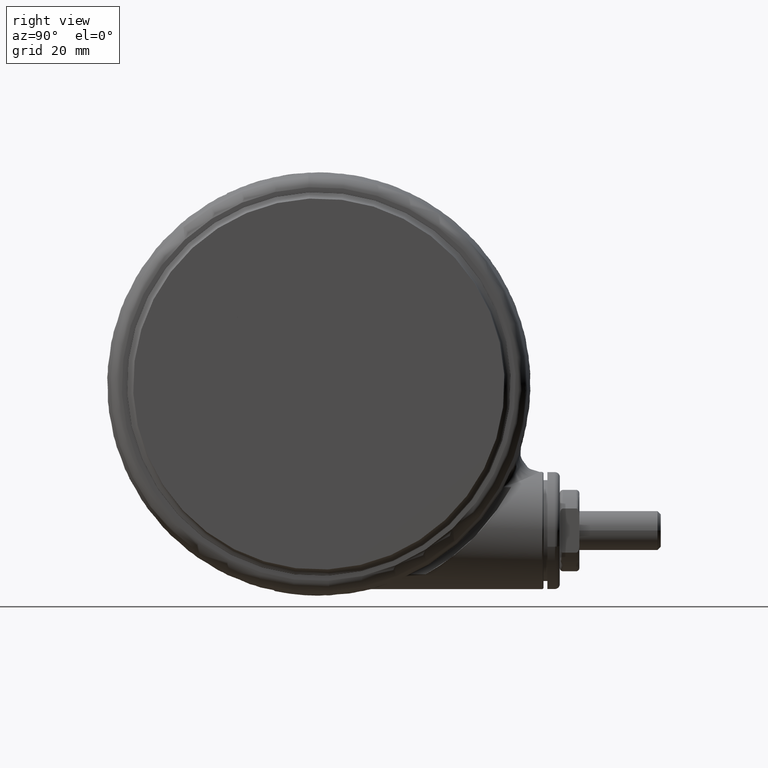
[diagram: clean part render]
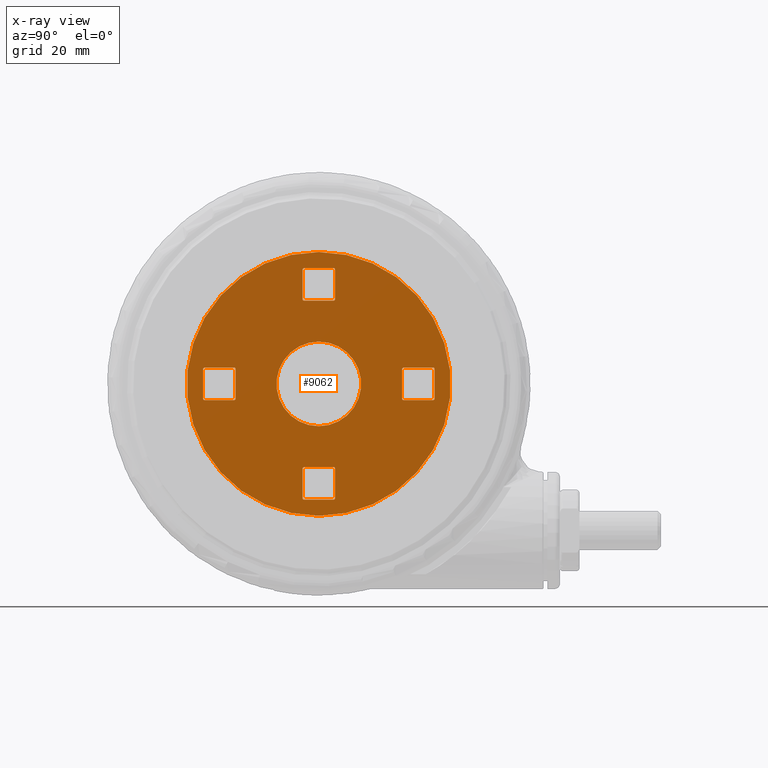
[diagram: x-ray — body ghosted, one internal face saturated and labeled with its STEP entity id]
A machine part, right view, then the same camera in x-ray: the body is ghosted and one INTERNAL B-rep face — a face not visible from any outside direction — is saturated and labeled: STEP entity #9062.
In plain terms, the highlighted planar face has unit normal (1, 0, 0).
Its self-contained STEP definition (entity closure, byte-faithful):
#20 = LINE ( 'NONE', #42425, #26552 ) ;
#415 = CARTESIAN_POINT ( 'NONE',  ( -5.551115123125782700E-014, -2.602085213965210600E-014, -64.40000000000011900 ) ) ;
#1004 = CIRCLE ( 'NONE', #11982, 0.4999999999999987200 ) ;
#1890 = VERTEX_POINT ( 'NONE', #55828 ) ;
#2413 = ORIENTED_EDGE ( 'NONE', *, *, #71773, .T. ) ;
#2543 = VECTOR ( 'NONE', #10982, 1000.000000000000000 ) ;
#2564 = CIRCLE ( 'NONE', #54447, 0.4999999999999998900 ) ;
#2573 = ORIENTED_EDGE ( 'NONE', *, *, #56860, .F. ) ;
#2575 = EDGE_CURVE ( 'NONE', #64687, #58416, #38888, .T. ) ;
#2703 = CARTESIAN_POINT ( 'NONE',  ( 40.44820674871324000, -2.047576815004776000, -64.40000000000011900 ) ) ;
#2720 = LINE ( 'NONE', #41997, #19505 ) ;
#2768 = AXIS2_PLACEMENT_3D ( 'NONE', #28159, #67853, #33880 ) ;
#3201 = VERTEX_POINT ( 'NONE', #71623 ) ;
#3313 = VERTEX_POINT ( 'NONE', #67631 ) ;
#3348 = EDGE_LOOP ( 'NONE', ( #55015, #4553, #20668, #70563, #17389, #19298, #4293, #20893 ) ) ;
#3676 = CIRCLE ( 'NONE', #68784, 0.5000000000000003300 ) ;
#4071 = CARTESIAN_POINT ( 'NONE',  ( 34.77766792283646400, -6.266283894694631800, -64.40000000000011900 ) ) ;
#4293 = ORIENTED_EDGE ( 'NONE', *, *, #58363, .F. ) ;
#4553 = ORIENTED_EDGE ( 'NONE', *, *, #71231, .T. ) ;
#4903 = DIRECTION ( 'NONE',  ( 0.9987211542892171500, -0.05055745222233561800, 0.0000000000000000000 ) ) ;
#5024 = EDGE_CURVE ( 'NONE', #54500, #21775, #57553, .T. ) ;
#5095 = DIRECTION ( 'NONE',  ( 0.9987211542892171500, -0.05055745222233566600, 0.0000000000000000000 ) ) ;
#5185 = VECTOR ( 'NONE', #21989, 1000.000000000000000 ) ;
#5223 = LINE ( 'NONE', #14843, #48694 ) ;
#5289 = CARTESIAN_POINT ( 'NONE',  ( -35.75732429609340100, -3.196288344941572200, -64.40000000000011900 ) ) ;
#5466 = EDGE_CURVE ( 'NONE', #56784, #3313, #45941, .T. ) ;
#5491 = AXIS2_PLACEMENT_3D ( 'NONE', #27932, #67625, #33631 ) ;
#5993 = CARTESIAN_POINT ( 'NONE',  ( 35.75732429609330200, 3.196288344941770700, -64.40000000000011900 ) ) ;
#6084 = DIRECTION ( 'NONE',  ( 0.9987211542892170400, -0.05055745222233949000, 0.0000000000000000000 ) ) ;
#7089 = VECTOR ( 'NONE', #40546, 1000.000000000000000 ) ;
#7240 = VERTEX_POINT ( 'NONE', #44119 ) ;
#7405 = VERTEX_POINT ( 'NONE', #57242 ) ;
#7805 = DIRECTION ( 'NONE',  ( -0.05055745222233957300, -0.9987211542892169300, 0.0000000000000000000 ) ) ;
#7921 = CARTESIAN_POINT ( 'NONE',  ( -6.790923197950309700, -35.25174977386999600, -64.40000000000011900 ) ) ;
#8108 = CARTESIAN_POINT ( 'NONE',  ( 5.785988098582195400, 25.28981695708894200, -64.40000000000011900 ) ) ;
#8542 = DIRECTION ( 'NONE',  ( 0.0000000000000000000, 0.0000000000000000000, 1.000000000000000000 ) ) ;
#8659 = VERTEX_POINT ( 'NONE', #31239 ) ;
#8812 = CIRCLE ( 'NONE', #5491, 0.5000000000000000000 ) ;
#9062 = ADVANCED_FACE ( 'NONE', ( #27801, #26011, #73030, #10984, #69507, #54439 ), #34932, .F. ) ;
#9563 = EDGE_CURVE ( 'NONE', #68791, #39032, #27728, .T. ) ;
#9619 = VERTEX_POINT ( 'NONE', #36079 ) ;
#9721 = EDGE_CURVE ( 'NONE', #1890, #19547, #43698, .T. ) ;
#9751 = DIRECTION ( 'NONE',  ( 0.9987211542892169300, -0.05055745222233925400, 0.0000000000000000000 ) ) ;
#9933 = EDGE_CURVE ( 'NONE', #64687, #19547, #17939, .T. ) ;
#10399 = ORIENTED_EDGE ( 'NONE', *, *, #56104, .T. ) ;
#10982 = DIRECTION ( 'NONE',  ( 0.05055745222234996100, 0.9987211542892164800, 0.0000000000000000000 ) ) ;
#10984 = FACE_BOUND ( 'NONE', #3348, .T. ) ;
#11152 = ORIENTED_EDGE ( 'NONE', *, *, #30944, .T. ) ;
#11781 = VERTEX_POINT ( 'NONE', #28456 ) ;
#11982 = AXIS2_PLACEMENT_3D ( 'NONE', #56159, #22159, #61805 ) ;
#12046 = CARTESIAN_POINT ( 'NONE',  ( 35.25174977386990300, -6.790923197950410100, -64.40000000000011900 ) ) ;
#12391 = DIRECTION ( 'NONE',  ( 0.0000000000000000000, 0.0000000000000000000, 1.000000000000000000 ) ) ;
#13003 = CARTESIAN_POINT ( 'NONE',  ( -6.765644471839140200, -34.75238919672538200, -64.40000000000011900 ) ) ;
#13272 = LINE ( 'NONE', #5993, #56742 ) ;
#13428 = EDGE_CURVE ( 'NONE', #71104, #8659, #69566, .T. ) ;
#13531 = AXIS2_PLACEMENT_3D ( 'NONE', #4071, #43700, #9751 ) ;
#13544 = EDGE_CURVE ( 'NONE', #3201, #7405, #60649, .T. ) ;
#13563 = DIRECTION ( 'NONE',  ( 0.0000000000000000000, 0.0000000000000000000, 1.000000000000000000 ) ) ;
#13578 = CARTESIAN_POINT ( 'NONE',  ( -3.221567071053141000, 35.25796371894872300, -64.40000000000011900 ) ) ;
#14416 = DIRECTION ( 'NONE',  ( 0.9987211542892164800, -0.05055745222235004400, -0.0000000000000000000 ) ) ;
#14843 = CARTESIAN_POINT ( 'NONE',  ( 3.701862867165255400, -25.77011275320122200, -64.40000000000011900 ) ) ;
#15205 = AXIS2_PLACEMENT_3D ( 'NONE', #50977, #16980, #56657 ) ;
#15532 = DIRECTION ( 'NONE',  ( 0.0000000000000000000, 0.0000000000000000000, 1.000000000000000000 ) ) ;
#15548 = VERTEX_POINT ( 'NONE', #13003 ) ;
#15994 = DIRECTION ( 'NONE',  ( 0.9987211542892169300, -0.05055745222233949700, 0.0000000000000000000 ) ) ;
#16060 = VERTEX_POINT ( 'NONE', #69422 ) ;
#16295 = CARTESIAN_POINT ( 'NONE',  ( 25.26453823097773800, -6.285348675726975600, -64.40000000000011900 ) ) ;
#16537 = CARTESIAN_POINT ( 'NONE',  ( 25.74483402708996500, 3.202502290020582200, -64.40000000000011900 ) ) ;
#16635 = EDGE_CURVE ( 'NONE', #45008, #3313, #1004, .T. ) ;
#16980 = DIRECTION ( 'NONE',  ( 0.0000000000000000000, 0.0000000000000000000, 1.000000000000000000 ) ) ;
#17355 = EDGE_CURVE ( 'NONE', #23512, #59276, #65572, .T. ) ;
#17389 = ORIENTED_EDGE ( 'NONE', *, *, #9933, .F. ) ;
#17494 = ORIENTED_EDGE ( 'NONE', *, *, #24032, .F. ) ;
#17615 = DIRECTION ( 'NONE',  ( -0.05055745222234298700, -0.9987211542892168200, 0.0000000000000000000 ) ) ;
#17629 = CARTESIAN_POINT ( 'NONE',  ( 26.26947333034574300, 3.676584141054025400, -64.40000000000011900 ) ) ;
#17939 = LINE ( 'NONE', #58553, #21495 ) ;
#18078 = EDGE_CURVE ( 'NONE', #72860, #59803, #34380, .T. ) ;
#18113 = EDGE_LOOP ( 'NONE', ( #17494, #19625, #30073, #43566, #48088, #21523, #42250, #54831 ) ) ;
#18843 = ORIENTED_EDGE ( 'NONE', *, *, #49581, .T. ) ;
#18884 = DIRECTION ( 'NONE',  ( 0.9987211542892168200, -0.05055745222234298700, -0.0000000000000000000 ) ) ;
#18910 = CARTESIAN_POINT ( 'NONE',  ( 35.27702849998107800, -6.291562620805801300, -64.40000000000011900 ) ) ;
#19288 = DIRECTION ( 'NONE',  ( 0.0000000000000000000, 0.0000000000000000000, 1.000000000000000000 ) ) ;
#19298 = ORIENTED_EDGE ( 'NONE', *, *, #2575, .T. ) ;
#19410 = CARTESIAN_POINT ( 'NONE',  ( 2.696927767797251200, -35.73204556998221900, -64.40000000000011900 ) ) ;
#19505 = VECTOR ( 'NONE', #36294, 1000.000000000000100 ) ;
#19547 = VERTEX_POINT ( 'NONE', #59055 ) ;
#19625 = ORIENTED_EDGE ( 'NONE', *, *, #16635, .T. ) ;
#19679 = CIRCLE ( 'NONE', #38663, 0.5000000000000004400 ) ;
#20452 = CARTESIAN_POINT ( 'NONE',  ( 5.811266824693365000, 25.78917753423354900, -64.40000000000011900 ) ) ;
#20668 = ORIENTED_EDGE ( 'NONE', *, *, #71434, .F. ) ;
#20893 = ORIENTED_EDGE ( 'NONE', *, *, #31914, .T. ) ;
#21260 = ORIENTED_EDGE ( 'NONE', *, *, #65279, .T. ) ;
#21495 = VECTOR ( 'NONE', #18884, 1000.000000000000000 ) ;
#21523 = ORIENTED_EDGE ( 'NONE', *, *, #43412, .T. ) ;
#21702 = CARTESIAN_POINT ( 'NONE',  ( -35.25796371894878700, -3.221567071052742200, -64.40000000000011900 ) ) ;
#21775 = VERTEX_POINT ( 'NONE', #46039 ) ;
#21989 = DIRECTION ( 'NONE',  ( 0.05055745222234298700, 0.9987211542892168200, 0.0000000000000000000 ) ) ;
#22159 = DIRECTION ( 'NONE',  ( 0.0000000000000000000, 0.0000000000000000000, 1.000000000000000000 ) ) ;
#23079 = CARTESIAN_POINT ( 'NONE',  ( -26.24419460423467500, -3.177223563909283800, -64.40000000000011900 ) ) ;
#23512 = VERTEX_POINT ( 'NONE', #2703 ) ;
#23527 = CARTESIAN_POINT ( 'NONE',  ( 2.730102420006277300, 53.93094233161769300, -64.40000000000011900 ) ) ;
#23784 = CARTESIAN_POINT ( 'NONE',  ( -35.73204556998223300, -2.696927767796959000, -64.40000000000011900 ) ) ;
#23789 = LINE ( 'NONE', #16295, #5185 ) ;
#23841 = EDGE_CURVE ( 'NONE', #15548, #16060, #55919, .T. ) ;
#23935 = LINE ( 'NONE', #34832, #7089 ) ;
#24032 = EDGE_CURVE ( 'NONE', #45008, #8659, #20, .T. ) ;
#24184 = CARTESIAN_POINT ( 'NONE',  ( -5.551115123125782700E-014, -2.602085213965210600E-014, -64.40000000000011900 ) ) ;
#24284 = DIRECTION ( 'NONE',  ( 0.9987211542892169300, -0.05055745222233949700, 0.0000000000000000000 ) ) ;
#25865 = CARTESIAN_POINT ( 'NONE',  ( -35.23268499283761900, -2.722206493908133000, -64.40000000000011900 ) ) ;
#25996 = AXIS2_PLACEMENT_3D ( 'NONE', #49521, #15532, #55201 ) ;
#26011 = FACE_BOUND ( 'NONE', #18113, .T. ) ;
#26140 = DIRECTION ( 'NONE',  ( 0.9987211542892169300, -0.05055745222234255000, 0.0000000000000000000 ) ) ;
#26472 = CARTESIAN_POINT ( 'NONE',  ( -5.551115123125782700E-014, -2.602085213965210600E-014, -64.40000000000011900 ) ) ;
#26543 = EDGE_CURVE ( 'NONE', #7240, #44173, #19679, .T. ) ;
#26552 = VECTOR ( 'NONE', #14416, 1000.000000000000000 ) ;
#26585 = CARTESIAN_POINT ( 'NONE',  ( -2.696927767797362200, 35.73204556998216200, -64.40000000000011900 ) ) ;
#26948 = DIRECTION ( 'NONE',  ( 0.0000000000000000000, 0.0000000000000000000, 1.000000000000000000 ) ) ;
#27246 = EDGE_CURVE ( 'NONE', #56058, #30849, #35561, .T. ) ;
#27407 = CARTESIAN_POINT ( 'NONE',  ( -12.98337500575987500, 0.6572468788903889100, -64.40000000000011900 ) ) ;
#27445 = CIRCLE ( 'NONE', #13531, 0.4999999999999987200 ) ;
#27637 = CARTESIAN_POINT ( 'NONE',  ( 6.285348675726804200, 25.26453823097776700, -64.40000000000011900 ) ) ;
#27728 = CIRCLE ( 'NONE', #63753, 13.00000000000000200 ) ;
#27801 = FACE_OUTER_BOUND ( 'NONE', #69627, .T. ) ;
#27825 = ORIENTED_EDGE ( 'NONE', *, *, #40684, .T. ) ;
#27932 = CARTESIAN_POINT ( 'NONE',  ( 3.177223563909476100, -26.24419460423466100, -64.40000000000011900 ) ) ;
#28076 = CARTESIAN_POINT ( 'NONE',  ( 34.75238919672528900, -6.765644471839240600, -64.40000000000011900 ) ) ;
#28159 = CARTESIAN_POINT ( 'NONE',  ( -3.177223563909587200, 26.24419460423460400, -64.40000000000011900 ) ) ;
#28456 = CARTESIAN_POINT ( 'NONE',  ( 3.221567071053030000, -35.25796371894878000, -64.40000000000011900 ) ) ;
#28755 = DIRECTION ( 'NONE',  ( 0.9987211542892169300, -0.05055745222233925400, 0.0000000000000000000 ) ) ;
#28869 = DIRECTION ( 'NONE',  ( 0.0000000000000000000, 0.0000000000000000000, 1.000000000000000000 ) ) ;
#29854 = DIRECTION ( 'NONE',  ( 0.9987211542892169300, -0.05055745222233949000, 0.0000000000000000000 ) ) ;
#29954 = CARTESIAN_POINT ( 'NONE',  ( -6.285348675726915200, -25.26453823097782300, -64.40000000000011900 ) ) ;
#30032 = AXIS2_PLACEMENT_3D ( 'NONE', #23079, #62727, #28755 ) ;
#30073 = ORIENTED_EDGE ( 'NONE', *, *, #5466, .F. ) ;
#30849 = VERTEX_POINT ( 'NONE', #21702 ) ;
#30882 = VECTOR ( 'NONE', #33335, 1000.000000000000100 ) ;
#30944 = EDGE_CURVE ( 'NONE', #59276, #23512, #64439, .T. ) ;
#31239 = CARTESIAN_POINT ( 'NONE',  ( -25.76389880812244800, 6.310627401838282900, -64.40000000000011900 ) ) ;
#31570 = DIRECTION ( 'NONE',  ( 0.9987211542892169300, -0.05055745222233925400, 0.0000000000000000000 ) ) ;
#31699 = AXIS2_PLACEMENT_3D ( 'NONE', #42486, #8542, #48217 ) ;
#31914 = EDGE_CURVE ( 'NONE', #57528, #21775, #35937, .T. ) ;
#32162 = EDGE_CURVE ( 'NONE', #71104, #9619, #23935, .T. ) ;
#32174 = DIRECTION ( 'NONE',  ( 0.9987211542892170400, -0.05055745222233949000, 0.0000000000000000000 ) ) ;
#32702 = VECTOR ( 'NONE', #47602, 1000.000000000000100 ) ;
#33335 = DIRECTION ( 'NONE',  ( -0.9987211542892169300, 0.05055745222233949700, 0.0000000000000000000 ) ) ;
#33631 = DIRECTION ( 'NONE',  ( 0.9987211542892169300, -0.05055745222234259200, 0.0000000000000000000 ) ) ;
#33745 = VECTOR ( 'NONE', #71199, 1000.000000000000000 ) ;
#33764 = CARTESIAN_POINT ( 'NONE',  ( 35.23268499283752000, 2.722206493908331900, -64.40000000000011900 ) ) ;
#33795 = CARTESIAN_POINT ( 'NONE',  ( 3.676584141054085400, -26.26947333034582900, -64.40000000000011900 ) ) ;
#33880 = DIRECTION ( 'NONE',  ( 0.9987211542892169300, -0.05055745222234259200, 0.0000000000000000000 ) ) ;
#34186 = ORIENTED_EDGE ( 'NONE', *, *, #18078, .F. ) ;
#34315 = AXIS2_PLACEMENT_3D ( 'NONE', #26472, #66142, #32174 ) ;
#34380 = LINE ( 'NONE', #72743, #47727 ) ;
#34510 = AXIS2_PLACEMENT_3D ( 'NONE', #60916, #26948, #66617 ) ;
#34832 = CARTESIAN_POINT ( 'NONE',  ( -25.26453823097784100, 6.285348675727102700, -64.40000000000011900 ) ) ;
#34932 = PLANE ( 'NONE',  #36168 ) ;
#35531 = CIRCLE ( 'NONE', #58132, 0.4999999999999998900 ) ;
#35544 = VERTEX_POINT ( 'NONE', #59352 ) ;
#35561 = LINE ( 'NONE', #65454, #33745 ) ;
#35937 = CIRCLE ( 'NONE', #25996, 0.4999999999999987200 ) ;
#36079 = CARTESIAN_POINT ( 'NONE',  ( -25.74483402709006400, -3.202502290020458700, -64.40000000000011900 ) ) ;
#36129 = EDGE_CURVE ( 'NONE', #3201, #45282, #43025, .T. ) ;
#36168 = AXIS2_PLACEMENT_3D ( 'NONE', #23527, #12391, #52058 ) ;
#36294 = DIRECTION ( 'NONE',  ( -0.9987211542892169300, 0.05055745222233949700, 0.0000000000000000000 ) ) ;
#36791 = ORIENTED_EDGE ( 'NONE', *, *, #9563, .T. ) ;
#37542 = AXIS2_PLACEMENT_3D ( 'NONE', #20452, #60119, #26140 ) ;
#38069 = LINE ( 'NONE', #29954, #51411 ) ;
#38527 = CARTESIAN_POINT ( 'NONE',  ( -26.26947333034584600, -3.676584141053898000, -64.40000000000011900 ) ) ;
#38663 = AXIS2_PLACEMENT_3D ( 'NONE', #62833, #28869, #68557 ) ;
#38827 = DIRECTION ( 'NONE',  ( 0.0000000000000000000, 0.0000000000000000000, 1.000000000000000000 ) ) ;
#38888 = CIRCLE ( 'NONE', #31699, 0.4999999999999987200 ) ;
#39009 = DIRECTION ( 'NONE',  ( 0.0000000000000000000, 0.0000000000000000000, 1.000000000000000000 ) ) ;
#39032 = VERTEX_POINT ( 'NONE', #27407 ) ;
#39474 = DIRECTION ( 'NONE',  ( 0.9987211542892169300, -0.05055745222233925400, 0.0000000000000000000 ) ) ;
#39588 = CARTESIAN_POINT ( 'NONE',  ( 3.202502290020646100, -25.74483402709004700, -64.40000000000011900 ) ) ;
#40028 = DIRECTION ( 'NONE',  ( -0.0000000000000000000, -0.0000000000000000000, -1.000000000000000000 ) ) ;
#40477 = ORIENTED_EDGE ( 'NONE', *, *, #44276, .F. ) ;
#40546 = DIRECTION ( 'NONE',  ( -0.05055745222234996100, -0.9987211542892164800, 0.0000000000000000000 ) ) ;
#40648 = CIRCLE ( 'NONE', #65826, 0.4999999999999987200 ) ;
#40684 = EDGE_CURVE ( 'NONE', #35544, #59803, #3676, .T. ) ;
#41289 = VECTOR ( 'NONE', #7805, 1000.000000000000100 ) ;
#41393 = VERTEX_POINT ( 'NONE', #19410 ) ;
#41707 = EDGE_LOOP ( 'NONE', ( #2573, #51379, #43994, #10399, #54541, #2413, #63009, #47230 ) ) ;
#41776 = CARTESIAN_POINT ( 'NONE',  ( 6.790923197950198700, 35.25174977386993900, -64.40000000000011900 ) ) ;
#41997 = CARTESIAN_POINT ( 'NONE',  ( 3.196288344941860000, -35.75732429609339400, -64.40000000000011900 ) ) ;
#42099 = EDGE_CURVE ( 'NONE', #52586, #11781, #5223, .T. ) ;
#42250 = ORIENTED_EDGE ( 'NONE', *, *, #32162, .F. ) ;
#42425 = CARTESIAN_POINT ( 'NONE',  ( -35.25174977387000300, 6.790923197950608200, -64.40000000000011900 ) ) ;
#42460 = VECTOR ( 'NONE', #68787, 1000.000000000000000 ) ;
#42486 = CARTESIAN_POINT ( 'NONE',  ( 26.24419460423457600, 3.177223563909416600, -64.40000000000011900 ) ) ;
#42545 = EDGE_CURVE ( 'NONE', #39032, #68791, #68992, .T. ) ;
#43002 = CARTESIAN_POINT ( 'NONE',  ( 25.28981695708891000, -5.785988098582366800, -64.40000000000011900 ) ) ;
#43025 = LINE ( 'NONE', #52418, #69625 ) ;
#43339 = AXIS2_PLACEMENT_3D ( 'NONE', #33764, #73436, #39474 ) ;
#43412 = EDGE_CURVE ( 'NONE', #56058, #9619, #62648, .T. ) ;
#43566 = ORIENTED_EDGE ( 'NONE', *, *, #57507, .T. ) ;
#43698 = CIRCLE ( 'NONE', #43339, 0.4999999999999987200 ) ;
#43700 = DIRECTION ( 'NONE',  ( 0.0000000000000000000, 0.0000000000000000000, 1.000000000000000000 ) ) ;
#43994 = ORIENTED_EDGE ( 'NONE', *, *, #71081, .F. ) ;
#44119 = CARTESIAN_POINT ( 'NONE',  ( -5.785988098582306400, -25.28981695708899100, -64.40000000000011900 ) ) ;
#44173 = VERTEX_POINT ( 'NONE', #46483 ) ;
#44276 = EDGE_CURVE ( 'NONE', #35544, #47773, #56368, .T. ) ;
#44832 = CARTESIAN_POINT ( 'NONE',  ( -34.75238919672539600, 6.765644471839428000, -64.40000000000011900 ) ) ;
#45008 = VERTEX_POINT ( 'NONE', #44832 ) ;
#45282 = VERTEX_POINT ( 'NONE', #13578 ) ;
#45941 = LINE ( 'NONE', #5289, #2543 ) ;
#46039 = CARTESIAN_POINT ( 'NONE',  ( 25.76389880812234900, -6.310627401838155000, -64.40000000000011900 ) ) ;
#46483 = CARTESIAN_POINT ( 'NONE',  ( -6.310627401838084800, -25.76389880812243000, -64.40000000000011900 ) ) ;
#47230 = ORIENTED_EDGE ( 'NONE', *, *, #26543, .T. ) ;
#47534 = CARTESIAN_POINT ( 'NONE',  ( -5.551115123125782700E-014, -2.602085213965210600E-014, -64.40000000000011900 ) ) ;
#47602 = DIRECTION ( 'NONE',  ( 0.05055745222233957300, 0.9987211542892169300, 0.0000000000000000000 ) ) ;
#47715 = CARTESIAN_POINT ( 'NONE',  ( -25.28981695708900900, 5.785988098582493900, -64.40000000000011900 ) ) ;
#47727 = VECTOR ( 'NONE', #15994, 1000.000000000000100 ) ;
#47773 = VERTEX_POINT ( 'NONE', #51533 ) ;
#47792 = LINE ( 'NONE', #27637, #30882 ) ;
#48088 = ORIENTED_EDGE ( 'NONE', *, *, #27246, .F. ) ;
#48217 = DIRECTION ( 'NONE',  ( 0.9987211542892169300, -0.05055745222233925400, 0.0000000000000000000 ) ) ;
#48305 = ORIENTED_EDGE ( 'NONE', *, *, #42545, .T. ) ;
#48364 = CARTESIAN_POINT ( 'NONE',  ( 6.291562620805589900, 35.27702849998111400, -64.40000000000011900 ) ) ;
#48486 = AXIS2_PLACEMENT_3D ( 'NONE', #415, #40028, #6084 ) ;
#48694 = VECTOR ( 'NONE', #71373, 1000.000000000000100 ) ;
#49521 = CARTESIAN_POINT ( 'NONE',  ( 25.78917753423352000, -5.811266824693546200, -64.40000000000011900 ) ) ;
#49581 = EDGE_CURVE ( 'NONE', #71996, #47773, #58375, .T. ) ;
#49623 = LINE ( 'NONE', #7921, #32702 ) ;
#49716 = ORIENTED_EDGE ( 'NONE', *, *, #72150, .F. ) ;
#49922 = AXIS2_PLACEMENT_3D ( 'NONE', #47534, #13563, #53212 ) ;
#50977 = CARTESIAN_POINT ( 'NONE',  ( -6.266283894694531400, -34.77766792283655700, -64.40000000000011900 ) ) ;
#51379 = ORIENTED_EDGE ( 'NONE', *, *, #23841, .T. ) ;
#51411 = VECTOR ( 'NONE', #24284, 1000.000000000000100 ) ;
#51533 = CARTESIAN_POINT ( 'NONE',  ( 6.310627401837973800, 25.76389880812238100, -64.40000000000011900 ) ) ;
#52021 = EDGE_LOOP ( 'NONE', ( #36791, #48305 ) ) ;
#52058 = DIRECTION ( 'NONE',  ( 0.9987211542892169300, -0.05055745222233949700, 0.0000000000000000000 ) ) ;
#52418 = CARTESIAN_POINT ( 'NONE',  ( -3.701862867165366400, 25.77011275320116500, -64.40000000000011900 ) ) ;
#52586 = VERTEX_POINT ( 'NONE', #33795 ) ;
#53212 = DIRECTION ( 'NONE',  ( 0.9987211542892169300, -0.05055745222233949000, 0.0000000000000000000 ) ) ;
#53255 = CARTESIAN_POINT ( 'NONE',  ( -2.722206493908532200, 35.23268499283754800, -64.40000000000011900 ) ) ;
#53922 = ORIENTED_EDGE ( 'NONE', *, *, #17355, .T. ) ;
#54439 = FACE_BOUND ( 'NONE', #52021, .T. ) ;
#54447 = AXIS2_PLACEMENT_3D ( 'NONE', #53255, #19288, #58947 ) ;
#54500 = VERTEX_POINT ( 'NONE', #28076 ) ;
#54541 = ORIENTED_EDGE ( 'NONE', *, *, #42099, .F. ) ;
#54598 = CARTESIAN_POINT ( 'NONE',  ( -40.44820674871334600, 2.047576815004728400, -64.40000000000011900 ) ) ;
#54831 = ORIENTED_EDGE ( 'NONE', *, *, #13428, .T. ) ;
#54941 = ORIENTED_EDGE ( 'NONE', *, *, #13544, .T. ) ;
#55015 = ORIENTED_EDGE ( 'NONE', *, *, #5024, .F. ) ;
#55201 = DIRECTION ( 'NONE',  ( 0.9987211542892169300, -0.05055745222233925400, 0.0000000000000000000 ) ) ;
#55828 = CARTESIAN_POINT ( 'NONE',  ( 35.73204556998213400, 2.696927767797156600, -64.40000000000011900 ) ) ;
#55919 = CIRCLE ( 'NONE', #15205, 0.5000000000000003300 ) ;
#56058 = VERTEX_POINT ( 'NONE', #38527 ) ;
#56104 = EDGE_CURVE ( 'NONE', #41393, #11781, #35531, .T. ) ;
#56159 = CARTESIAN_POINT ( 'NONE',  ( -34.77766792283656400, 6.266283894694819200, -64.40000000000011900 ) ) ;
#56332 = VERTEX_POINT ( 'NONE', #18910 ) ;
#56368 = LINE ( 'NONE', #41776, #41289 ) ;
#56657 = DIRECTION ( 'NONE',  ( 0.9987211542892171500, -0.05055745222233561800, 0.0000000000000000000 ) ) ;
#56742 = VECTOR ( 'NONE', #17615, 1000.000000000000000 ) ;
#56784 = VERTEX_POINT ( 'NONE', #23784 ) ;
#56795 = EDGE_CURVE ( 'NONE', #7240, #69231, #38069, .T. ) ;
#56860 = EDGE_CURVE ( 'NONE', #15548, #44173, #49623, .T. ) ;
#57242 = CARTESIAN_POINT ( 'NONE',  ( -3.202502290020757100, 25.74483402708999700, -64.40000000000011900 ) ) ;
#57507 = EDGE_CURVE ( 'NONE', #56784, #30849, #40648, .T. ) ;
#57528 = VERTEX_POINT ( 'NONE', #43002 ) ;
#57553 = LINE ( 'NONE', #12046, #42460 ) ;
#58132 = AXIS2_PLACEMENT_3D ( 'NONE', #72961, #39009, #5095 ) ;
#58363 = EDGE_CURVE ( 'NONE', #57528, #58416, #23789, .T. ) ;
#58375 = CIRCLE ( 'NONE', #37542, 0.5000000000000004400 ) ;
#58416 = VERTEX_POINT ( 'NONE', #16537 ) ;
#58553 = CARTESIAN_POINT ( 'NONE',  ( 25.77011275320113300, 3.701862867165195400, -64.40000000000011900 ) ) ;
#58947 = DIRECTION ( 'NONE',  ( 0.9987211542892171500, -0.05055745222233566600, 0.0000000000000000000 ) ) ;
#59055 = CARTESIAN_POINT ( 'NONE',  ( 35.25796371894868700, 3.221567071052940700, -64.40000000000011900 ) ) ;
#59276 = VERTEX_POINT ( 'NONE', #54598 ) ;
#59352 = CARTESIAN_POINT ( 'NONE',  ( 6.765644471839029200, 34.75238919672532500, -64.40000000000011900 ) ) ;
#59803 = VERTEX_POINT ( 'NONE', #48364 ) ;
#60119 = DIRECTION ( 'NONE',  ( 0.0000000000000000000, 0.0000000000000000000, 1.000000000000000000 ) ) ;
#60649 = CIRCLE ( 'NONE', #2768, 0.5000000000000000000 ) ;
#60916 = CARTESIAN_POINT ( 'NONE',  ( -25.78917753423362000, 5.811266824693674100, -64.40000000000011900 ) ) ;
#61805 = DIRECTION ( 'NONE',  ( 0.9987211542892169300, -0.05055745222233925400, 0.0000000000000000000 ) ) ;
#62178 = ORIENTED_EDGE ( 'NONE', *, *, #36129, .F. ) ;
#62648 = CIRCLE ( 'NONE', #30032, 0.4999999999999987200 ) ;
#62727 = DIRECTION ( 'NONE',  ( 0.0000000000000000000, 0.0000000000000000000, 1.000000000000000000 ) ) ;
#62833 = CARTESIAN_POINT ( 'NONE',  ( -5.811266824693476000, -25.78917753423360500, -64.40000000000011900 ) ) ;
#63009 = ORIENTED_EDGE ( 'NONE', *, *, #56795, .F. ) ;
#63753 = AXIS2_PLACEMENT_3D ( 'NONE', #24184, #63839, #29854 ) ;
#63797 = DIRECTION ( 'NONE',  ( 0.05055745222233949700, 0.9987211542892169300, 0.0000000000000000000 ) ) ;
#63839 = DIRECTION ( 'NONE',  ( 0.0000000000000000000, 0.0000000000000000000, 1.000000000000000000 ) ) ;
#64439 = CIRCLE ( 'NONE', #48486, 40.50000000000000700 ) ;
#64687 = VERTEX_POINT ( 'NONE', #17629 ) ;
#65279 = EDGE_CURVE ( 'NONE', #72860, #45282, #2564, .T. ) ;
#65454 = CARTESIAN_POINT ( 'NONE',  ( -25.77011275320123600, -3.701862867165068000, -64.40000000000011900 ) ) ;
#65529 = DIRECTION ( 'NONE',  ( 0.0000000000000000000, 0.0000000000000000000, 1.000000000000000000 ) ) ;
#65572 = CIRCLE ( 'NONE', #34315, 40.50000000000000700 ) ;
#65826 = AXIS2_PLACEMENT_3D ( 'NONE', #25865, #65529, #31570 ) ;
#66142 = DIRECTION ( 'NONE',  ( -0.0000000000000000000, -0.0000000000000000000, -1.000000000000000000 ) ) ;
#66617 = DIRECTION ( 'NONE',  ( 0.9987211542892169300, -0.05055745222233925400, 0.0000000000000000000 ) ) ;
#67625 = DIRECTION ( 'NONE',  ( 0.0000000000000000000, 0.0000000000000000000, 1.000000000000000000 ) ) ;
#67631 = CARTESIAN_POINT ( 'NONE',  ( -35.27702849998117800, 6.291562620805999400, -64.40000000000011900 ) ) ;
#67853 = DIRECTION ( 'NONE',  ( 0.0000000000000000000, 0.0000000000000000000, 1.000000000000000000 ) ) ;
#68557 = DIRECTION ( 'NONE',  ( 0.9987211542892169300, -0.05055745222234255000, 0.0000000000000000000 ) ) ;
#68784 = AXIS2_PLACEMENT_3D ( 'NONE', #72773, #38827, #4903 ) ;
#68787 = DIRECTION ( 'NONE',  ( -0.9987211542892168200, 0.05055745222234307000, 0.0000000000000000000 ) ) ;
#68791 = VERTEX_POINT ( 'NONE', #69411 ) ;
#68992 = CIRCLE ( 'NONE', #49922, 13.00000000000000200 ) ;
#69231 = VERTEX_POINT ( 'NONE', #39588 ) ;
#69411 = CARTESIAN_POINT ( 'NONE',  ( 12.98337500575976700, -0.6572468788904395300, -64.40000000000011900 ) ) ;
#69422 = CARTESIAN_POINT ( 'NONE',  ( -6.291562620805700900, -35.27702849998117100, -64.40000000000011900 ) ) ;
#69507 = FACE_BOUND ( 'NONE', #69550, .T. ) ;
#69550 = EDGE_LOOP ( 'NONE', ( #40477, #27825, #34186, #21260, #62178, #54941, #49716, #18843 ) ) ;
#69566 = CIRCLE ( 'NONE', #34510, 0.4999999999999987200 ) ;
#69625 = VECTOR ( 'NONE', #63797, 1000.000000000000100 ) ;
#69627 = EDGE_LOOP ( 'NONE', ( #53922, #11152 ) ) ;
#70563 = ORIENTED_EDGE ( 'NONE', *, *, #9721, .T. ) ;
#71081 = EDGE_CURVE ( 'NONE', #41393, #16060, #2720, .T. ) ;
#71104 = VERTEX_POINT ( 'NONE', #47715 ) ;
#71199 = DIRECTION ( 'NONE',  ( -0.9987211542892164800, 0.05055745222234996100, 0.0000000000000000000 ) ) ;
#71231 = EDGE_CURVE ( 'NONE', #54500, #56332, #27445, .T. ) ;
#71373 = DIRECTION ( 'NONE',  ( -0.05055745222233949700, -0.9987211542892169300, 0.0000000000000000000 ) ) ;
#71434 = EDGE_CURVE ( 'NONE', #1890, #56332, #13272, .T. ) ;
#71623 = CARTESIAN_POINT ( 'NONE',  ( -3.676584141054196400, 26.26947333034577900, -64.40000000000011900 ) ) ;
#71773 = EDGE_CURVE ( 'NONE', #52586, #69231, #8812, .T. ) ;
#71996 = VERTEX_POINT ( 'NONE', #8108 ) ;
#72150 = EDGE_CURVE ( 'NONE', #71996, #7405, #47792, .T. ) ;
#72743 = CARTESIAN_POINT ( 'NONE',  ( -3.196288344941971000, 35.75732429609333700, -64.40000000000011900 ) ) ;
#72773 = CARTESIAN_POINT ( 'NONE',  ( 6.266283894694420400, 34.77766792283650000, -64.40000000000011900 ) ) ;
#72860 = VERTEX_POINT ( 'NONE', #26585 ) ;
#72961 = CARTESIAN_POINT ( 'NONE',  ( 2.722206493908421200, -35.23268499283760500, -64.40000000000011900 ) ) ;
#73030 = FACE_BOUND ( 'NONE', #41707, .T. ) ;
#73436 = DIRECTION ( 'NONE',  ( 0.0000000000000000000, 0.0000000000000000000, 1.000000000000000000 ) ) ;